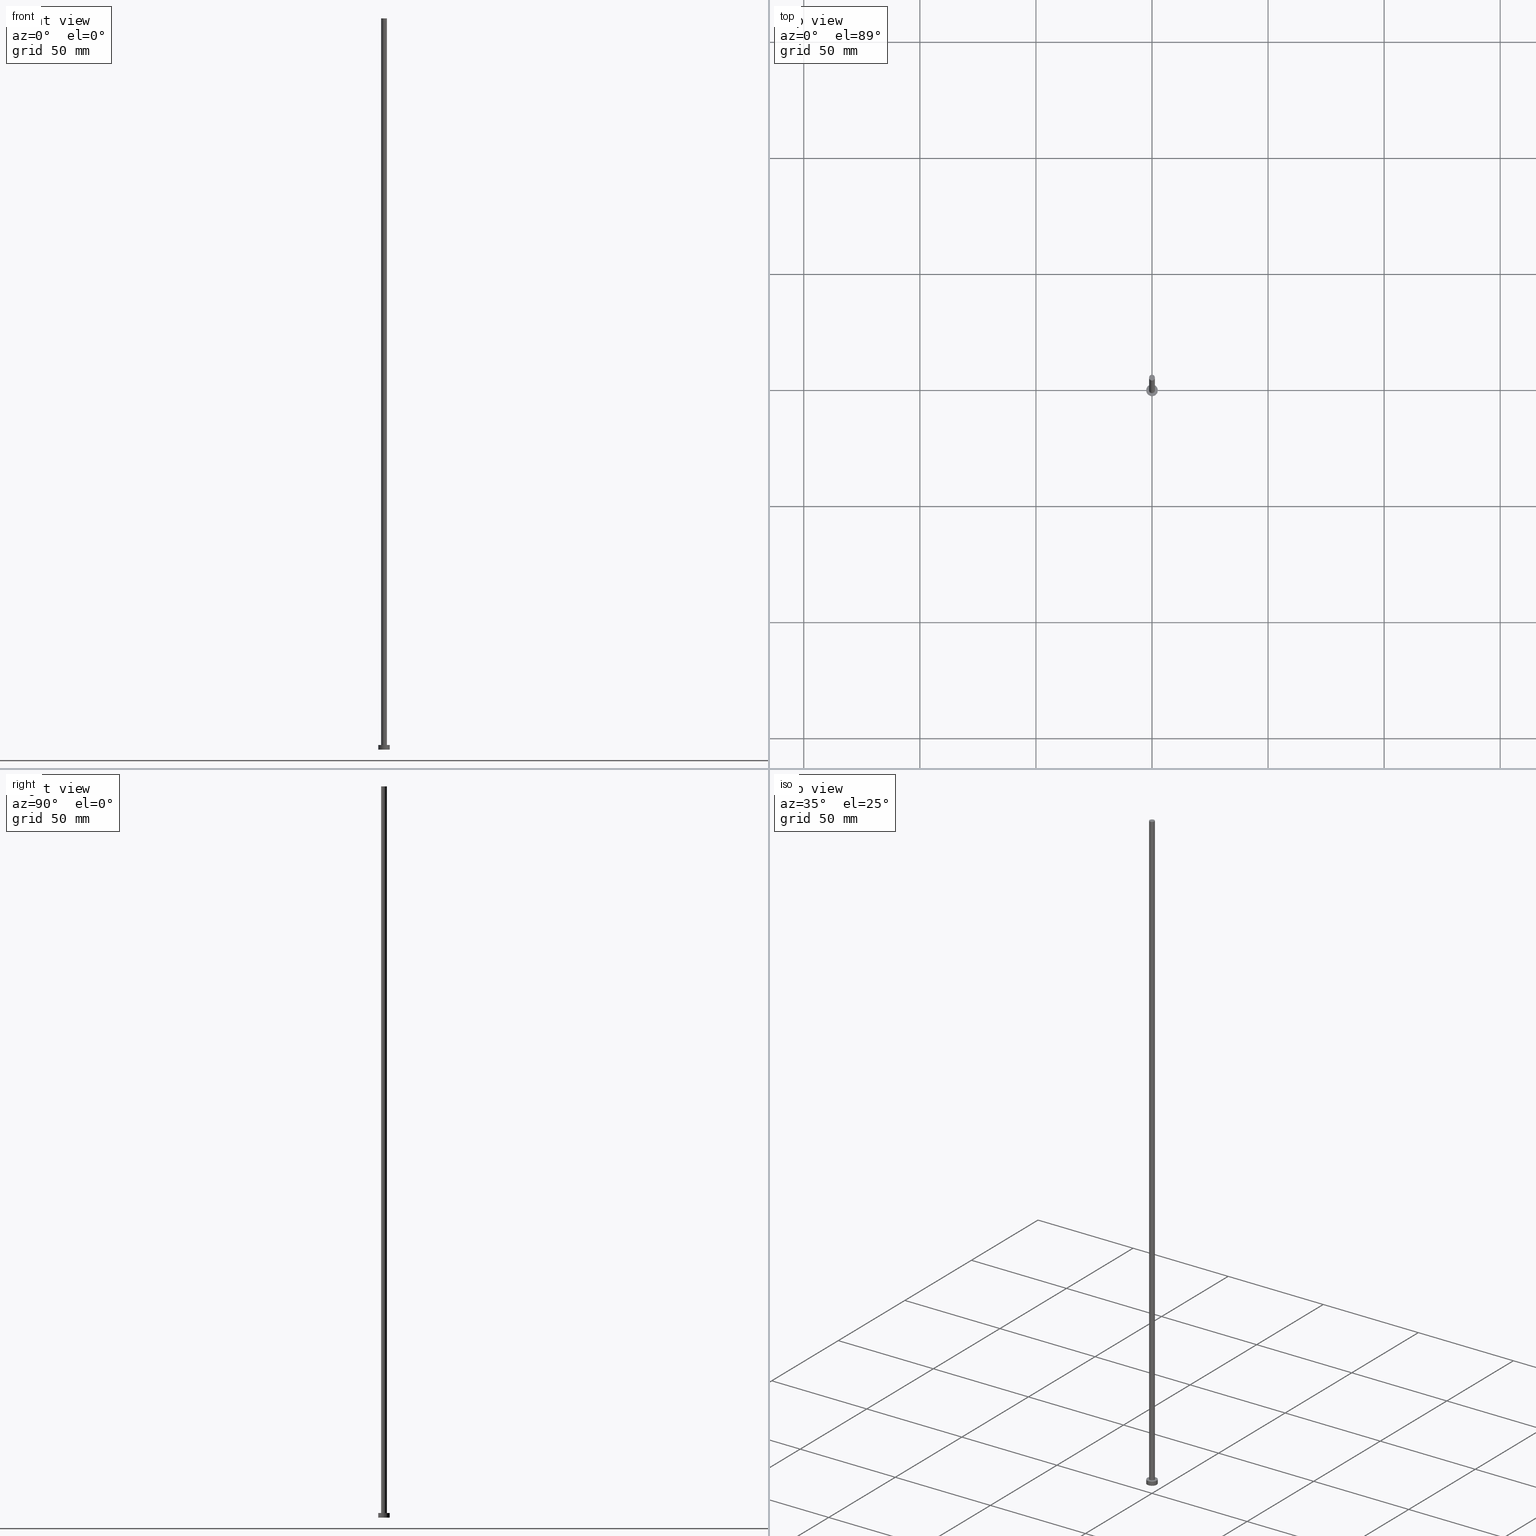
[diagram: canonical four-view strip — front | top / right | iso, engineering-drawing reading convention]
A machine part, canonical four-view strip (front | top / right | iso — engineering-drawing reading convention). The complete STEP part file that produces these views, byte-faithful:
ISO-10303-21;
HEADER;
FILE_DESCRIPTION (( 'STEP AP203' ),
    '1' );
FILE_NAME ('2608.STEP',
    '2023-02-12T12:48:33',
    ( '' ),
    ( '' ),
    'SwSTEP 2.0',
    'SolidWorks 2019',
    '' );
FILE_SCHEMA (( 'CONFIG_CONTROL_DESIGN' ));
ENDSEC;

DATA;
#1 = VECTOR ( 'NONE', #248, 1000.000000000000000 ) ;
#2 = CARTESIAN_POINT ( 'NONE',  ( 0.000000000000000000, 0.000000000000000000, 315.0000000000000000 ) ) ;
#3 = DIRECTION ( 'NONE',  ( 1.000000000000000000, 0.000000000000000000, -0.000000000000000000 ) ) ;
#4 = CARTESIAN_POINT ( 'NONE',  ( 0.000000000000000000, 0.000000000000000000, 2.000000000000000000 ) ) ;
#5 = CC_DESIGN_DATE_AND_TIME_ASSIGNMENT ( #189, #62, ( #76 ) ) ;
#6 = EDGE_LOOP ( 'NONE', ( #231, #148 ) ) ;
#7 = DIRECTION ( 'NONE',  ( 0.000000000000000000, 0.000000000000000000, 1.000000000000000000 ) ) ;
#8 = AXIS2_PLACEMENT_3D ( 'NONE', #149, #137, #238 ) ;
#9 = SECURITY_CLASSIFICATION_LEVEL ( 'unclassified' ) ;
#10 = PERSON ( 'NEUR�EN�', 'NEUR�EN�', 'NEUR�EN�', ('NEUR�EN�'), ('NEUR�EN�'), ('NEUR�EN�') ) ;
#11 = ORIENTED_EDGE ( 'NONE', *, *, #86, .F. ) ;
#12 = APPLICATION_PROTOCOL_DEFINITION ( 'international standard', 'config_control_design', 1994, #69 ) ;
#13 = AXIS2_PLACEMENT_3D ( 'NONE', #185, #163, #234 ) ;
#14 = CC_DESIGN_PERSON_AND_ORGANIZATION_ASSIGNMENT ( #217, #117, ( #221 ) ) ;
#15 = APPROVAL_PERSON_ORGANIZATION ( #64, #241, #97 ) ;
#16 = COORDINATED_UNIVERSAL_TIME_OFFSET ( 1, 0, .AHEAD. ) ;
#17 = ORIENTED_EDGE ( 'NONE', *, *, #245, .T. ) ;
#18 = ADVANCED_FACE ( 'NONE', ( #237 ), #67, .T. ) ;
#19 = CIRCLE ( 'NONE', #49, 2.500000000000000000 ) ;
#20 = CARTESIAN_POINT ( 'NONE',  ( 2.500000000000000000, 3.061616997868383141E-16, 0.000000000000000000 ) ) ;
#21 = ORIENTED_EDGE ( 'NONE', *, *, #162, .F. ) ;
#22 = ORIENTED_EDGE ( 'NONE', *, *, #100, .T. ) ;
#23 = LOCAL_TIME ( 13, 48, 33.00000000000000000, #243 ) ;
#24 = PLANE ( 'NONE',  #155 ) ;
#25 = DIRECTION ( 'NONE',  ( 0.000000000000000000, 0.000000000000000000, 1.000000000000000000 ) ) ;
#26 = CARTESIAN_POINT ( 'NONE',  ( -2.500000000000000000, 0.000000000000000000, 0.000000000000000000 ) ) ;
#27 = CC_DESIGN_APPROVAL ( #241, ( #76 ) ) ;
#28 = DIRECTION ( 'NONE',  ( 1.000000000000000000, 0.000000000000000000, 0.000000000000000000 ) ) ;
#29 = APPROVAL_DATE_TIME ( #54, #168 ) ;
#30 = CARTESIAN_POINT ( 'NONE',  ( 1.250000000000000000, 1.530808498934191571E-16, 315.0000000000000000 ) ) ;
#31 = ORIENTED_EDGE ( 'NONE', *, *, #162, .T. ) ;
#32 = PERSON_AND_ORGANIZATION ( #10, #84 ) ;
#33 = CARTESIAN_POINT ( 'NONE',  ( 2.500000000000000000, 3.061616997868383141E-16, 2.000000000000000000 ) ) ;
#34 = DATE_AND_TIME ( #142, #152 ) ;
#35 = ORIENTED_EDGE ( 'NONE', *, *, #153, .T. ) ;
#36 = CARTESIAN_POINT ( 'NONE',  ( 0.000000000000000000, 0.000000000000000000, 2.000000000000000000 ) ) ;
#37 =( GEOMETRIC_REPRESENTATION_CONTEXT ( 3 ) GLOBAL_UNCERTAINTY_ASSIGNED_CONTEXT ( ( #80 ) ) GLOBAL_UNIT_ASSIGNED_CONTEXT ( ( #136, #194, #198 ) ) REPRESENTATION_CONTEXT ( 'NONE', 'WORKASPACE' ) );
#38 = DIRECTION ( 'NONE',  ( 1.000000000000000000, 0.000000000000000000, 0.000000000000000000 ) ) ;
#39 = CC_DESIGN_DATE_AND_TIME_ASSIGNMENT ( #34, #225, ( #226 ) ) ;
#40 = DIRECTION ( 'NONE',  ( -1.000000000000000000, 0.000000000000000000, 0.000000000000000000 ) ) ;
#41 = DIRECTION ( 'NONE',  ( -0.000000000000000000, -0.000000000000000000, -1.000000000000000000 ) ) ;
#42 = APPLICATION_CONTEXT ( 'configuration controlled 3d designs of mechanical parts and assemblies' ) ;
#43 = CARTESIAN_POINT ( 'NONE',  ( 0.000000000000000000, 0.000000000000000000, 2.000000000000000000 ) ) ;
#44 = DIRECTION ( 'NONE',  ( 0.000000000000000000, 0.000000000000000000, 1.000000000000000000 ) ) ;
#45 = APPROVAL_STATUS ( 'not_yet_approved' ) ;
#46 = DIRECTION ( 'NONE',  ( 0.000000000000000000, 0.000000000000000000, 1.000000000000000000 ) ) ;
#47 = PLANE ( 'NONE',  #239 ) ;
#48 = CARTESIAN_POINT ( 'NONE',  ( -1.250000000000000000, 0.000000000000000000, 315.0000000000000000 ) ) ;
#49 = AXIS2_PLACEMENT_3D ( 'NONE', #171, #7, #175 ) ;
#50 = APPLICATION_PROTOCOL_DEFINITION ( 'international standard', 'config_control_design', 1994, #42 ) ;
#51 = SHAPE_DEFINITION_REPRESENTATION ( #74, #177 ) ;
#52 = DIRECTION ( 'NONE',  ( 1.000000000000000000, 0.000000000000000000, 0.000000000000000000 ) ) ;
#53 = PERSON_AND_ORGANIZATION_ROLE ( 'classification_officer' ) ;
#54 = DATE_AND_TIME ( #140, #23 ) ;
#55 = CARTESIAN_POINT ( 'NONE',  ( 0.000000000000000000, 0.000000000000000000, 0.000000000000000000 ) ) ;
#56 = PRODUCT_DEFINITION_FORMATION_WITH_SPECIFIED_SOURCE ( 'LIBOVOLN�', '', #221, .NOT_KNOWN. ) ;
#57 = APPROVAL_STATUS ( 'not_yet_approved' ) ;
#58 = ORIENTED_EDGE ( 'NONE', *, *, #153, .F. ) ;
#59 = ORIENTED_EDGE ( 'NONE', *, *, #114, .F. ) ;
#60 = DIRECTION ( 'NONE',  ( 1.000000000000000000, 0.000000000000000000, -0.000000000000000000 ) ) ;
#61 = EDGE_CURVE ( 'NONE', #210, #161, #232, .T. ) ;
#62 = DATE_TIME_ROLE ( 'classification_date' ) ;
#63 = CARTESIAN_POINT ( 'NONE',  ( 0.000000000000000000, 0.000000000000000000, 315.0000000000000000 ) ) ;
#64 = PERSON_AND_ORGANIZATION ( #10, #84 ) ;
#65 = CIRCLE ( 'NONE', #158, 1.250000000000000000 ) ;
#66 = FACE_OUTER_BOUND ( 'NONE', #147, .T. ) ;
#67 = CYLINDRICAL_SURFACE ( 'NONE', #195, 2.500000000000000000 ) ;
#68 = CARTESIAN_POINT ( 'NONE',  ( -2.500000000000000000, 0.000000000000000000, 2.000000000000000000 ) ) ;
#69 = APPLICATION_CONTEXT ( 'configuration controlled 3d designs of mechanical parts and assemblies' ) ;
#70 = FACE_OUTER_BOUND ( 'NONE', #222, .T. ) ;
#71 = EDGE_CURVE ( 'NONE', #126, #161, #144, .T. ) ;
#72 = ORIENTED_EDGE ( 'NONE', *, *, #61, .T. ) ;
#73 = CALENDAR_DATE ( 2023, 12, 2 ) ;
#74 = PRODUCT_DEFINITION_SHAPE ( 'NONE', 'NONE',  #226 ) ;
#75 = PERSON_AND_ORGANIZATION ( #10, #84 ) ;
#76 = SECURITY_CLASSIFICATION ( '', '', #9 ) ;
#77 = DIRECTION ( 'NONE',  ( 0.000000000000000000, 0.000000000000000000, 1.000000000000000000 ) ) ;
#78 = COORDINATED_UNIVERSAL_TIME_OFFSET ( 1, 0, .AHEAD. ) ;
#79 = DIRECTION ( 'NONE',  ( 1.000000000000000000, 0.000000000000000000, 0.000000000000000000 ) ) ;
#80 = UNCERTAINTY_MEASURE_WITH_UNIT (LENGTH_MEASURE( 1.000000000000000082E-05 ), #136, 'distance_accuracy_value', 'NONE');
#81 = AXIS2_PLACEMENT_3D ( 'NONE', #91, #138, #52 ) ;
#82 = VERTEX_POINT ( 'NONE', #98 ) ;
#83 = VECTOR ( 'NONE', #219, 1000.000000000000000 ) ;
#84 = ORGANIZATION ( 'NEUR�EN�', 'NEUR�EN�', '' ) ;
#85 = VERTEX_POINT ( 'NONE', #109 ) ;
#86 = EDGE_CURVE ( 'NONE', #210, #229, #200, .T. ) ;
#87 = AXIS2_PLACEMENT_3D ( 'NONE', #254, #128, #60 ) ;
#88 = AXIS2_PLACEMENT_3D ( 'NONE', #63, #187, #132 ) ;
#89 = APPROVAL ( #57, 'NEUR�EN�' ) ;
#90 = CC_DESIGN_SECURITY_CLASSIFICATION ( #76, ( #56 ) ) ;
#91 = CARTESIAN_POINT ( 'NONE',  ( 0.000000000000000000, 0.000000000000000000, 0.000000000000000000 ) ) ;
#92 = DATE_AND_TIME ( #73, #244 ) ;
#93 = ORIENTED_EDGE ( 'NONE', *, *, #130, .F. ) ;
#94 = PERSON_AND_ORGANIZATION ( #10, #84 ) ;
#95 = AXIS2_PLACEMENT_3D ( 'NONE', #43, #41, #111 ) ;
#96 = ORIENTED_EDGE ( 'NONE', *, *, #130, .T. ) ;
#97 = APPROVAL_ROLE ( '' ) ;
#98 = CARTESIAN_POINT ( 'NONE',  ( -1.250000000000000000, 0.000000000000000000, 2.000000000000000000 ) ) ;
#99 = ORIENTED_EDGE ( 'NONE', *, *, #245, .F. ) ;
#100 = EDGE_CURVE ( 'NONE', #85, #159, #65, .T. ) ;
#101 = CARTESIAN_POINT ( 'NONE',  ( 1.250000000000000000, 1.530808498934191571E-16, 315.0000000000000000 ) ) ;
#102 = LOCAL_TIME ( 13, 48, 33.00000000000000000, #78 ) ;
#103 = VECTOR ( 'NONE', #127, 1000.000000000000000 ) ;
#104 = PERSON_AND_ORGANIZATION_ROLE ( 'design_supplier' ) ;
#105 = FACE_OUTER_BOUND ( 'NONE', #125, .T. ) ;
#106 = ORIENTED_EDGE ( 'NONE', *, *, #110, .T. ) ;
#107 = PLANE ( 'NONE',  #87 ) ;
#108 = PRODUCT_RELATED_PRODUCT_CATEGORY ( 'detail', '', ( #221 ) ) ;
#109 = CARTESIAN_POINT ( 'NONE',  ( -1.250000000000000000, 0.000000000000000000, 315.0000000000000000 ) ) ;
#110 = EDGE_CURVE ( 'NONE', #159, #85, #188, .T. ) ;
#111 = DIRECTION ( 'NONE',  ( -1.000000000000000000, 0.000000000000000000, 0.000000000000000000 ) ) ;
#112 = DIRECTION ( 'NONE',  ( 0.000000000000000000, 0.000000000000000000, 1.000000000000000000 ) ) ;
#113 = DIRECTION ( 'NONE',  ( 1.000000000000000000, 0.000000000000000000, 0.000000000000000000 ) ) ;
#114 = EDGE_CURVE ( 'NONE', #160, #82, #230, .T. ) ;
#115 = LINE ( 'NONE', #101, #1 ) ;
#116 = CIRCLE ( 'NONE', #164, 2.500000000000000000 ) ;
#117 = PERSON_AND_ORGANIZATION_ROLE ( 'design_owner' ) ;
#118 = COORDINATED_UNIVERSAL_TIME_OFFSET ( 1, 0, .AHEAD. ) ;
#119 = DIRECTION ( 'NONE',  ( 1.000000000000000000, 0.000000000000000000, -0.000000000000000000 ) ) ;
#120 = CC_DESIGN_PERSON_AND_ORGANIZATION_ASSIGNMENT ( #94, #180, ( #226 ) ) ;
#121 = ORIENTED_EDGE ( 'NONE', *, *, #61, .F. ) ;
#122 = APPROVAL_ROLE ( '' ) ;
#123 = LOCAL_TIME ( 13, 48, 33.00000000000000000, #118 ) ;
#124 = EDGE_CURVE ( 'NONE', #229, #210, #116, .T. ) ;
#125 = EDGE_LOOP ( 'NONE', ( #58, #146, #145, #31 ) ) ;
#126 = VERTEX_POINT ( 'NONE', #26 ) ;
#127 = DIRECTION ( 'NONE',  ( -0.000000000000000000, -0.000000000000000000, -1.000000000000000000 ) ) ;
#128 = DIRECTION ( 'NONE',  ( 0.000000000000000000, 0.000000000000000000, 1.000000000000000000 ) ) ;
#129 = CALENDAR_DATE ( 2023, 12, 2 ) ;
#130 = EDGE_CURVE ( 'NONE', #161, #126, #19, .T. ) ;
#131 = FACE_OUTER_BOUND ( 'NONE', #242, .T. ) ;
#132 = DIRECTION ( 'NONE',  ( 1.000000000000000000, 0.000000000000000000, 0.000000000000000000 ) ) ;
#133 = LINE ( 'NONE', #68, #181 ) ;
#134 = AXIS2_PLACEMENT_3D ( 'NONE', #166, #25, #113 ) ;
#135 = DIRECTION ( 'NONE',  ( -1.000000000000000000, 0.000000000000000000, 0.000000000000000000 ) ) ;
#136 =( LENGTH_UNIT ( ) NAMED_UNIT ( * ) SI_UNIT ( .MILLI., .METRE. ) );
#137 = DIRECTION ( 'NONE',  ( -0.000000000000000000, -0.000000000000000000, -1.000000000000000000 ) ) ;
#138 = DIRECTION ( 'NONE',  ( 0.000000000000000000, 0.000000000000000000, 1.000000000000000000 ) ) ;
#139 = APPROVAL_PERSON_ORGANIZATION ( #173, #168, #154 ) ;
#140 = CALENDAR_DATE ( 2023, 12, 2 ) ;
#141 = EDGE_CURVE ( 'NONE', #85, #82, #156, .T. ) ;
#142 = CALENDAR_DATE ( 2023, 12, 2 ) ;
#143 = CARTESIAN_POINT ( 'NONE',  ( 0.000000000000000000, 0.000000000000000000, 315.0000000000000000 ) ) ;
#144 = CIRCLE ( 'NONE', #249, 2.500000000000000000 ) ;
#145 = ORIENTED_EDGE ( 'NONE', *, *, #141, .T. ) ;
#146 = ORIENTED_EDGE ( 'NONE', *, *, #100, .F. ) ;
#147 = EDGE_LOOP ( 'NONE', ( #202, #93 ) ) ;
#148 = ORIENTED_EDGE ( 'NONE', *, *, #86, .T. ) ;
#149 = CARTESIAN_POINT ( 'NONE',  ( 0.000000000000000000, 0.000000000000000000, 315.0000000000000000 ) ) ;
#150 = CC_DESIGN_PERSON_AND_ORGANIZATION_ASSIGNMENT ( #32, #104, ( #56 ) ) ;
#151 = CC_DESIGN_PERSON_AND_ORGANIZATION_ASSIGNMENT ( #240, #53, ( #76 ) ) ;
#152 = LOCAL_TIME ( 13, 48, 33.00000000000000000, #157 ) ;
#153 = EDGE_CURVE ( 'NONE', #159, #160, #115, .T. ) ;
#154 = APPROVAL_ROLE ( '' ) ;
#155 = AXIS2_PLACEMENT_3D ( 'NONE', #165, #236, #3 ) ;
#156 = LINE ( 'NONE', #48, #83 ) ;
#157 = COORDINATED_UNIVERSAL_TIME_OFFSET ( 1, 0, .AHEAD. ) ;
#158 = AXIS2_PLACEMENT_3D ( 'NONE', #2, #46, #28 ) ;
#159 = VERTEX_POINT ( 'NONE', #30 ) ;
#160 = VERTEX_POINT ( 'NONE', #179 ) ;
#161 = VERTEX_POINT ( 'NONE', #20 ) ;
#162 = EDGE_CURVE ( 'NONE', #82, #160, #218, .T. ) ;
#163 = DIRECTION ( 'NONE',  ( 0.000000000000000000, 0.000000000000000000, 1.000000000000000000 ) ) ;
#164 = AXIS2_PLACEMENT_3D ( 'NONE', #4, #112, #190 ) ;
#165 = CARTESIAN_POINT ( 'NONE',  ( 0.000000000000000000, 0.000000000000000000, 315.0000000000000000 ) ) ;
#166 = CARTESIAN_POINT ( 'NONE',  ( 0.000000000000000000, 0.000000000000000000, 2.000000000000000000 ) ) ;
#167 = CARTESIAN_POINT ( 'NONE',  ( -2.500000000000000000, 0.000000000000000000, 2.000000000000000000 ) ) ;
#168 = APPROVAL ( #176, 'NEUR�EN�' ) ;
#169 = ORIENTED_EDGE ( 'NONE', *, *, #71, .T. ) ;
#170 = DATE_AND_TIME ( #129, #102 ) ;
#171 = CARTESIAN_POINT ( 'NONE',  ( 0.000000000000000000, 0.000000000000000000, 0.000000000000000000 ) ) ;
#172 = CC_DESIGN_APPROVAL ( #168, ( #226 ) ) ;
#173 = PERSON_AND_ORGANIZATION ( #10, #84 ) ;
#174 = CLOSED_SHELL ( 'NONE', ( #235, #192, #18, #182, #209, #216, #204 ) ) ;
#175 = DIRECTION ( 'NONE',  ( 1.000000000000000000, 0.000000000000000000, 0.000000000000000000 ) ) ;
#176 = APPROVAL_STATUS ( 'not_yet_approved' ) ;
#177 = ADVANCED_BREP_SHAPE_REPRESENTATION ( '2608', ( #211, #81 ), #37 ) ;
#178 = EDGE_LOOP ( 'NONE', ( #22, #106 ) ) ;
#179 = CARTESIAN_POINT ( 'NONE',  ( 1.250000000000000000, 1.530808498934191571E-16, 2.000000000000000000 ) ) ;
#180 = PERSON_AND_ORGANIZATION_ROLE ( 'creator' ) ;
#181 = VECTOR ( 'NONE', #191, 1000.000000000000000 ) ;
#182 = ADVANCED_FACE ( 'NONE', ( #183, #208 ), #107, .T. ) ;
#183 = FACE_BOUND ( 'NONE', #253, .T. ) ;
#184 = CARTESIAN_POINT ( 'NONE',  ( 0.000000000000000000, 0.000000000000000000, 0.000000000000000000 ) ) ;
#185 = CARTESIAN_POINT ( 'NONE',  ( 0.000000000000000000, 0.000000000000000000, 2.000000000000000000 ) ) ;
#186 = FACE_OUTER_BOUND ( 'NONE', #178, .T. ) ;
#187 = DIRECTION ( 'NONE',  ( 0.000000000000000000, 0.000000000000000000, 1.000000000000000000 ) ) ;
#188 = CIRCLE ( 'NONE', #88, 1.250000000000000000 ) ;
#189 = DATE_AND_TIME ( #199, #123 ) ;
#190 = DIRECTION ( 'NONE',  ( 1.000000000000000000, 0.000000000000000000, 0.000000000000000000 ) ) ;
#191 = DIRECTION ( 'NONE',  ( -0.000000000000000000, -0.000000000000000000, -1.000000000000000000 ) ) ;
#192 = ADVANCED_FACE ( 'NONE', ( #131 ), #212, .T. ) ;
#193 = CYLINDRICAL_SURFACE ( 'NONE', #8, 1.250000000000000000 ) ;
#194 =( NAMED_UNIT ( * ) PLANE_ANGLE_UNIT ( ) SI_UNIT ( $, .RADIAN. ) );
#195 = AXIS2_PLACEMENT_3D ( 'NONE', #36, #213, #135 ) ;
#196 = APPROVAL_DATE_TIME ( #170, #241 ) ;
#197 = MECHANICAL_CONTEXT ( 'NONE', #42, 'mechanical' ) ;
#198 =( NAMED_UNIT ( * ) SI_UNIT ( $, .STERADIAN. ) SOLID_ANGLE_UNIT ( ) );
#199 = CALENDAR_DATE ( 2023, 12, 2 ) ;
#200 = CIRCLE ( 'NONE', #13, 2.500000000000000000 ) ;
#201 = CC_DESIGN_PERSON_AND_ORGANIZATION_ASSIGNMENT ( #75, #223, ( #56 ) ) ;
#202 = ORIENTED_EDGE ( 'NONE', *, *, #71, .F. ) ;
#203 = PERSON_AND_ORGANIZATION ( #10, #84 ) ;
#204 = ADVANCED_FACE ( 'NONE', ( #186 ), #24, .T. ) ;
#205 = AXIS2_PLACEMENT_3D ( 'NONE', #143, #227, #40 ) ;
#206 = ORIENTED_EDGE ( 'NONE', *, *, #110, .F. ) ;
#207 = EDGE_LOOP ( 'NONE', ( #121, #255, #17, #169 ) ) ;
#208 = FACE_OUTER_BOUND ( 'NONE', #6, .T. ) ;
#209 = ADVANCED_FACE ( 'NONE', ( #66 ), #47, .F. ) ;
#210 = VERTEX_POINT ( 'NONE', #33 ) ;
#211 = MANIFOLD_SOLID_BREP ( 'P�idat vysunut�m3', #174 ) ;
#212 = CYLINDRICAL_SURFACE ( 'NONE', #95, 2.500000000000000000 ) ;
#213 = DIRECTION ( 'NONE',  ( -0.000000000000000000, -0.000000000000000000, -1.000000000000000000 ) ) ;
#214 = CARTESIAN_POINT ( 'NONE',  ( 2.500000000000000000, 3.061616997868383141E-16, 2.000000000000000000 ) ) ;
#215 = APPROVAL_PERSON_ORGANIZATION ( #203, #89, #122 ) ;
#216 = ADVANCED_FACE ( 'NONE', ( #105 ), #250, .T. ) ;
#217 = PERSON_AND_ORGANIZATION ( #10, #84 ) ;
#218 = CIRCLE ( 'NONE', #233, 1.250000000000000000 ) ;
#219 = DIRECTION ( 'NONE',  ( -0.000000000000000000, -0.000000000000000000, -1.000000000000000000 ) ) ;
#220 = APPROVAL_DATE_TIME ( #92, #89 ) ;
#221 = PRODUCT ( '2608', '2608', '', ( #197 ) ) ;
#222 = EDGE_LOOP ( 'NONE', ( #206, #35, #228, #246 ) ) ;
#223 = PERSON_AND_ORGANIZATION_ROLE ( 'creator' ) ;
#224 = DIRECTION ( 'NONE',  ( 0.000000000000000000, 0.000000000000000000, 1.000000000000000000 ) ) ;
#225 = DATE_TIME_ROLE ( 'creation_date' ) ;
#226 = PRODUCT_DEFINITION ( 'NEZN�M�', '', #56, #251 ) ;
#227 = DIRECTION ( 'NONE',  ( -0.000000000000000000, -0.000000000000000000, -1.000000000000000000 ) ) ;
#228 = ORIENTED_EDGE ( 'NONE', *, *, #114, .T. ) ;
#229 = VERTEX_POINT ( 'NONE', #167 ) ;
#230 = CIRCLE ( 'NONE', #134, 1.250000000000000000 ) ;
#231 = ORIENTED_EDGE ( 'NONE', *, *, #124, .T. ) ;
#232 = LINE ( 'NONE', #214, #103 ) ;
#233 = AXIS2_PLACEMENT_3D ( 'NONE', #247, #77, #79 ) ;
#234 = DIRECTION ( 'NONE',  ( 1.000000000000000000, 0.000000000000000000, 0.000000000000000000 ) ) ;
#235 = ADVANCED_FACE ( 'NONE', ( #70 ), #193, .T. ) ;
#236 = DIRECTION ( 'NONE',  ( 0.000000000000000000, 0.000000000000000000, 1.000000000000000000 ) ) ;
#237 = FACE_OUTER_BOUND ( 'NONE', #207, .T. ) ;
#238 = DIRECTION ( 'NONE',  ( -1.000000000000000000, 0.000000000000000000, 0.000000000000000000 ) ) ;
#239 = AXIS2_PLACEMENT_3D ( 'NONE', #55, #224, #119 ) ;
#240 = PERSON_AND_ORGANIZATION ( #10, #84 ) ;
#241 = APPROVAL ( #45, 'NEUR�EN�' ) ;
#242 = EDGE_LOOP ( 'NONE', ( #11, #72, #96, #99 ) ) ;
#243 = COORDINATED_UNIVERSAL_TIME_OFFSET ( 1, 0, .AHEAD. ) ;
#244 = LOCAL_TIME ( 13, 48, 33.00000000000000000, #16 ) ;
#245 = EDGE_CURVE ( 'NONE', #229, #126, #133, .T. ) ;
#246 = ORIENTED_EDGE ( 'NONE', *, *, #141, .F. ) ;
#247 = CARTESIAN_POINT ( 'NONE',  ( 0.000000000000000000, 0.000000000000000000, 2.000000000000000000 ) ) ;
#248 = DIRECTION ( 'NONE',  ( -0.000000000000000000, -0.000000000000000000, -1.000000000000000000 ) ) ;
#249 = AXIS2_PLACEMENT_3D ( 'NONE', #184, #44, #38 ) ;
#250 = CYLINDRICAL_SURFACE ( 'NONE', #205, 1.250000000000000000 ) ;
#251 = DESIGN_CONTEXT ( 'detailed design', #69, 'design' ) ;
#252 = CC_DESIGN_APPROVAL ( #89, ( #56 ) ) ;
#253 = EDGE_LOOP ( 'NONE', ( #21, #59 ) ) ;
#254 = CARTESIAN_POINT ( 'NONE',  ( 0.000000000000000000, 0.000000000000000000, 2.000000000000000000 ) ) ;
#255 = ORIENTED_EDGE ( 'NONE', *, *, #124, .F. ) ;
ENDSEC;
END-ISO-10303-21;
